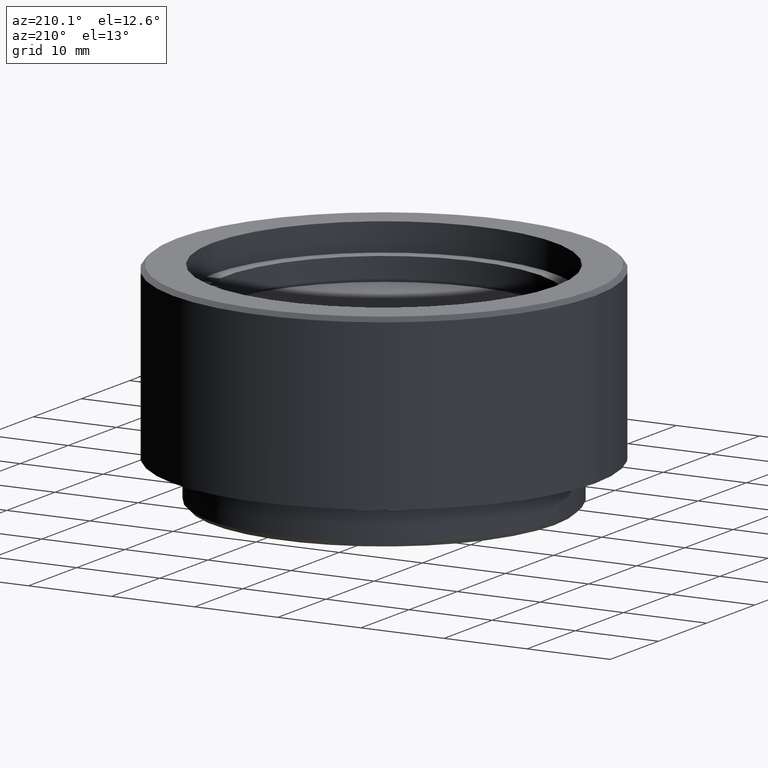
[diagram: clean part render]
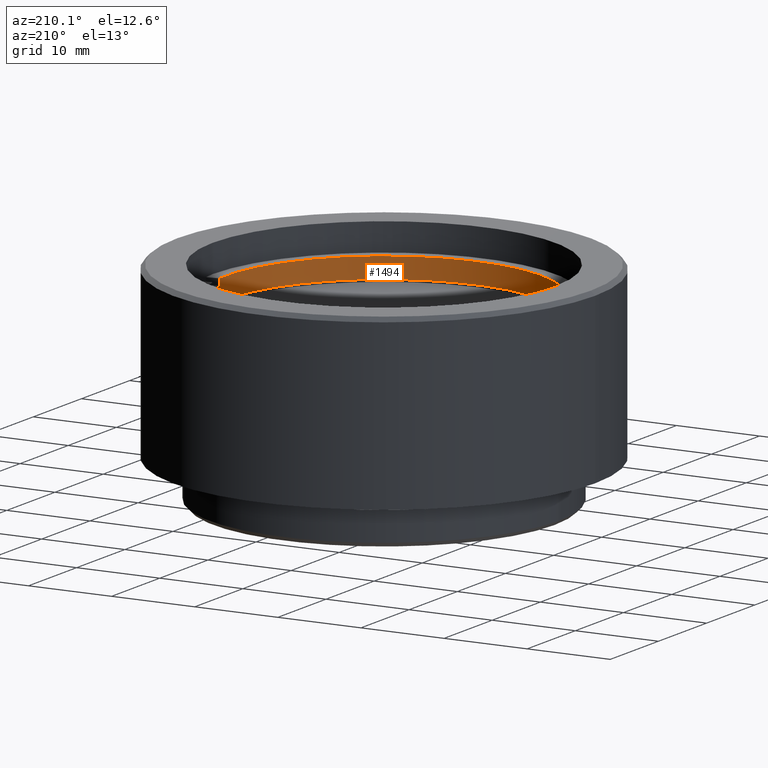
[diagram: same view with one face highlighted and labeled with its STEP entity id]
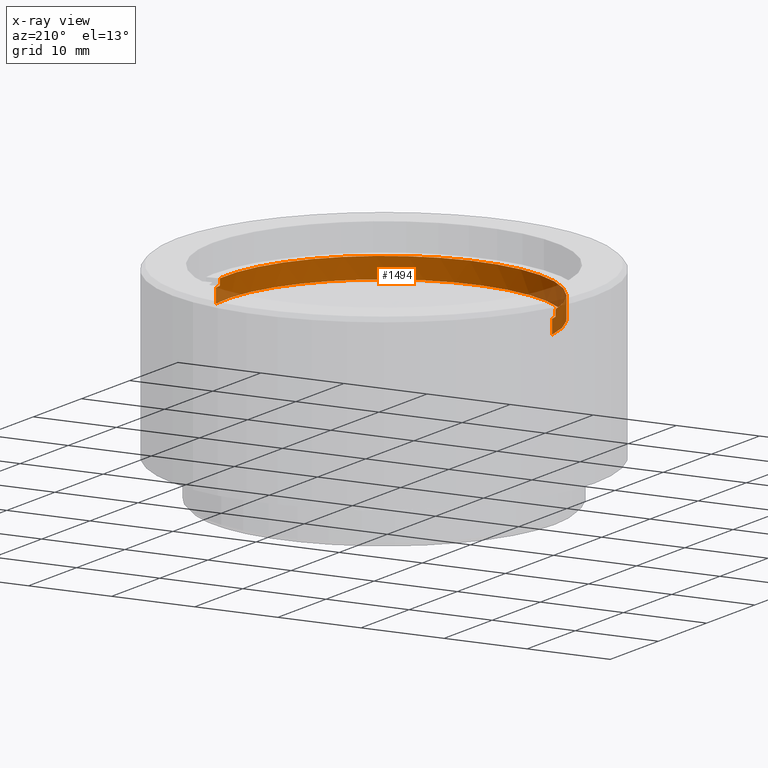
[diagram: x-ray of the same camera — body ghosted, the highlighted face saturated]
A machine part, auxiliary view. The second image highlights one B-rep face of the part: STEP entity #1494.
The next image is the same camera in x-ray: the body ghosted, the highlighted face saturated — about 11% of this face is hidden behind the body in this view.
In plain terms, the highlighted cylindrical surface (partial cylindrical patch) has radius 19 mm, axis along (0, -0, -1).
Its self-contained STEP definition (entity closure, byte-faithful):
#40 = CARTESIAN_POINT ( 'NONE',  ( 19.00000000000000000, 2.326828918379970970E-15, 0.000000000000000000 ) ) ;
#43 = DIRECTION ( 'NONE',  ( -0.000000000000000000, -0.000000000000000000, -1.000000000000000000 ) ) ;
#48 = AXIS2_PLACEMENT_3D ( 'NONE', #833, #1226, #555 ) ;
#54 = DIRECTION ( 'NONE',  ( 1.000000000000000000, 0.000000000000000000, 0.000000000000000000 ) ) ;
#107 = VERTEX_POINT ( 'NONE', #1412 ) ;
#122 = VERTEX_POINT ( 'NONE', #1532 ) ;
#185 = LINE ( 'NONE', #1124, #1474 ) ;
#186 = DIRECTION ( 'NONE',  ( 0.000000000000000000, 0.000000000000000000, 1.000000000000000000 ) ) ;
#234 = FACE_OUTER_BOUND ( 'NONE', #1415, .T. ) ;
#267 = EDGE_CURVE ( 'NONE', #122, #686, #702, .T. ) ;
#309 = CARTESIAN_POINT ( 'NONE',  ( 18.97366596101027625, -1.000000000000000000, 1.700000000000000178 ) ) ;
#339 = DIRECTION ( 'NONE',  ( 0.000000000000000000, 0.000000000000000000, 1.000000000000000000 ) ) ;
#374 = DIRECTION ( 'NONE',  ( 1.000000000000000000, 0.000000000000000000, 0.000000000000000000 ) ) ;
#376 = CIRCLE ( 'NONE', #1563, 19.00000000000000000 ) ;
#400 = CIRCLE ( 'NONE', #1615, 19.00000000000000000 ) ;
#415 = DIRECTION ( 'NONE',  ( -0.000000000000000000, -0.000000000000000000, -1.000000000000000000 ) ) ;
#424 = EDGE_CURVE ( 'NONE', #122, #1018, #648, .T. ) ;
#447 = ORIENTED_EDGE ( 'NONE', *, *, #424, .F. ) ;
#538 = ORIENTED_EDGE ( 'NONE', *, *, #806, .T. ) ;
#555 = DIRECTION ( 'NONE',  ( 1.000000000000000000, 0.000000000000000000, 0.000000000000000000 ) ) ;
#559 = ORIENTED_EDGE ( 'NONE', *, *, #851, .F. ) ;
#588 = CARTESIAN_POINT ( 'NONE',  ( 0.000000000000000000, 0.000000000000000000, 1.700000000000000178 ) ) ;
#628 = EDGE_CURVE ( 'NONE', #1565, #1018, #1262, .T. ) ;
#648 = LINE ( 'NONE', #902, #781 ) ;
#679 = CARTESIAN_POINT ( 'NONE',  ( -19.00000000000000000, 0.000000000000000000, 1.700000000000000178 ) ) ;
#686 = VERTEX_POINT ( 'NONE', #1138 ) ;
#695 = LINE ( 'NONE', #935, #1524 ) ;
#702 = CIRCLE ( 'NONE', #48, 19.00000000000000000 ) ;
#754 = ORIENTED_EDGE ( 'NONE', *, *, #924, .F. ) ;
#758 = DIRECTION ( 'NONE',  ( -1.000000000000000000, 0.000000000000000000, 0.000000000000000000 ) ) ;
#781 = VECTOR ( 'NONE', #1033, 1000.000000000000000 ) ;
#788 = CARTESIAN_POINT ( 'NONE',  ( 19.00000000000000000, 2.326828918379970970E-15, 2.500000000000000000 ) ) ;
#789 = CYLINDRICAL_SURFACE ( 'NONE', #995, 19.00000000000000000 ) ;
#806 = EDGE_CURVE ( 'NONE', #1024, #1690, #1341, .T. ) ;
#833 = CARTESIAN_POINT ( 'NONE',  ( 0.000000000000000000, 0.000000000000000000, 2.500000000000000000 ) ) ;
#851 = EDGE_CURVE ( 'NONE', #1565, #107, #695, .T. ) ;
#889 = VECTOR ( 'NONE', #415, 1000.000000000000000 ) ;
#897 = CARTESIAN_POINT ( 'NONE',  ( 0.000000000000000000, 0.000000000000000000, 2.500000000000000000 ) ) ;
#902 = CARTESIAN_POINT ( 'NONE',  ( -18.97366596101027625, -1.000000000000000000, 2.500000000000000000 ) ) ;
#924 = EDGE_CURVE ( 'NONE', #1686, #686, #185, .T. ) ;
#933 = EDGE_CURVE ( 'NONE', #1686, #1024, #400, .T. ) ;
#935 = CARTESIAN_POINT ( 'NONE',  ( -19.00000000000000000, 0.000000000000000000, 2.500000000000000000 ) ) ;
#973 = CARTESIAN_POINT ( 'NONE',  ( 19.00000000000000000, 2.326828918379970970E-15, 1.700000000000000178 ) ) ;
#979 = ORIENTED_EDGE ( 'NONE', *, *, #1170, .F. ) ;
#994 = DIRECTION ( 'NONE',  ( 1.000000000000000000, 0.000000000000000000, 0.000000000000000000 ) ) ;
#995 = AXIS2_PLACEMENT_3D ( 'NONE', #897, #1420, #758 ) ;
#1018 = VERTEX_POINT ( 'NONE', #1645 ) ;
#1024 = VERTEX_POINT ( 'NONE', #973 ) ;
#1033 = DIRECTION ( 'NONE',  ( -0.000000000000000000, -0.000000000000000000, -1.000000000000000000 ) ) ;
#1116 = DIRECTION ( 'NONE',  ( -0.000000000000000000, 0.000000000000000000, 1.000000000000000000 ) ) ;
#1124 = CARTESIAN_POINT ( 'NONE',  ( 18.97366596101027625, -1.000000000000000000, 2.500000000000000000 ) ) ;
#1138 = CARTESIAN_POINT ( 'NONE',  ( 18.97366596101027625, -1.000000000000000000, 2.500000000000000000 ) ) ;
#1170 = EDGE_CURVE ( 'NONE', #107, #1690, #376, .T. ) ;
#1226 = DIRECTION ( 'NONE',  ( 0.000000000000000000, 0.000000000000000000, 1.000000000000000000 ) ) ;
#1262 = CIRCLE ( 'NONE', #1694, 19.00000000000000000 ) ;
#1293 = CARTESIAN_POINT ( 'NONE',  ( 0.000000000000000000, 0.000000000000000000, 1.700000000000000178 ) ) ;
#1297 = ORIENTED_EDGE ( 'NONE', *, *, #628, .T. ) ;
#1341 = LINE ( 'NONE', #788, #889 ) ;
#1346 = CARTESIAN_POINT ( 'NONE',  ( 0.000000000000000000, 0.000000000000000000, 0.000000000000000000 ) ) ;
#1380 = ORIENTED_EDGE ( 'NONE', *, *, #267, .T. ) ;
#1400 = DIRECTION ( 'NONE',  ( -0.000000000000000000, 0.000000000000000000, 1.000000000000000000 ) ) ;
#1412 = CARTESIAN_POINT ( 'NONE',  ( -19.00000000000000000, 0.000000000000000000, 0.000000000000000000 ) ) ;
#1415 = EDGE_LOOP ( 'NONE', ( #1481, #538, #979, #559, #1297, #447, #1380, #754 ) ) ;
#1420 = DIRECTION ( 'NONE',  ( -0.000000000000000000, -0.000000000000000000, -1.000000000000000000 ) ) ;
#1474 = VECTOR ( 'NONE', #339, 1000.000000000000000 ) ;
#1481 = ORIENTED_EDGE ( 'NONE', *, *, #933, .T. ) ;
#1494 = ADVANCED_FACE ( 'NONE', ( #234 ), #789, .F. ) ;
#1524 = VECTOR ( 'NONE', #43, 1000.000000000000000 ) ;
#1532 = CARTESIAN_POINT ( 'NONE',  ( -18.97366596101027625, -1.000000000000000000, 2.500000000000000000 ) ) ;
#1563 = AXIS2_PLACEMENT_3D ( 'NONE', #1346, #186, #54 ) ;
#1565 = VERTEX_POINT ( 'NONE', #679 ) ;
#1615 = AXIS2_PLACEMENT_3D ( 'NONE', #588, #1116, #994 ) ;
#1645 = CARTESIAN_POINT ( 'NONE',  ( -18.97366596101027625, -1.000000000000000000, 1.700000000000000178 ) ) ;
#1686 = VERTEX_POINT ( 'NONE', #309 ) ;
#1690 = VERTEX_POINT ( 'NONE', #40 ) ;
#1694 = AXIS2_PLACEMENT_3D ( 'NONE', #1293, #1400, #374 ) ;